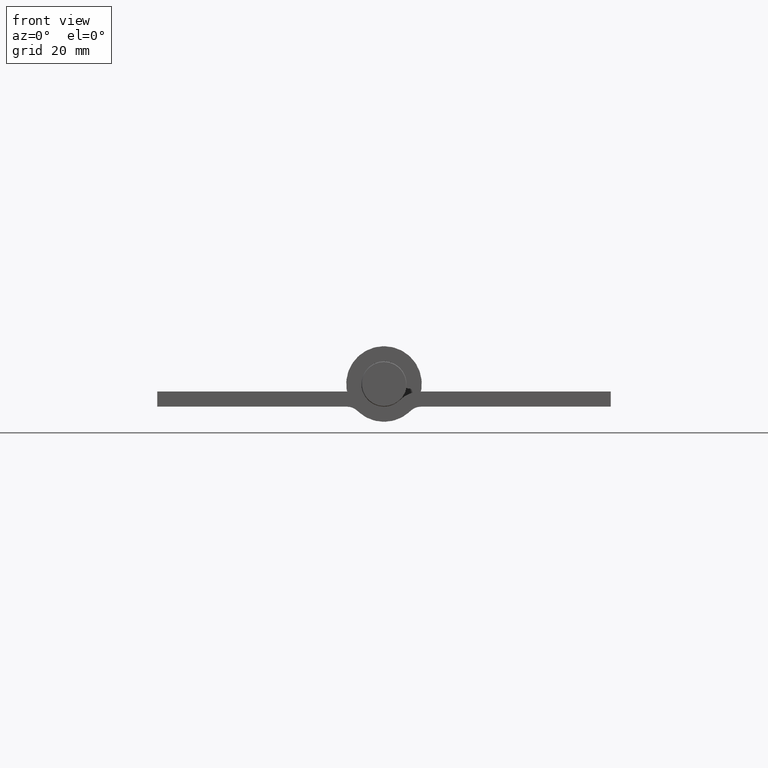
[diagram: clean part render]
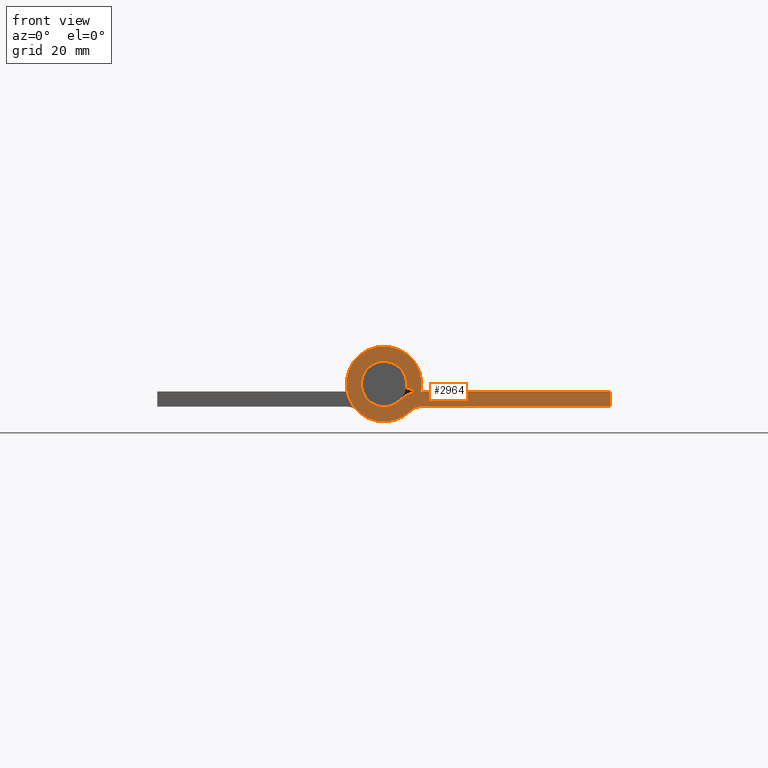
[diagram: same view with one face highlighted and labeled with its STEP entity id]
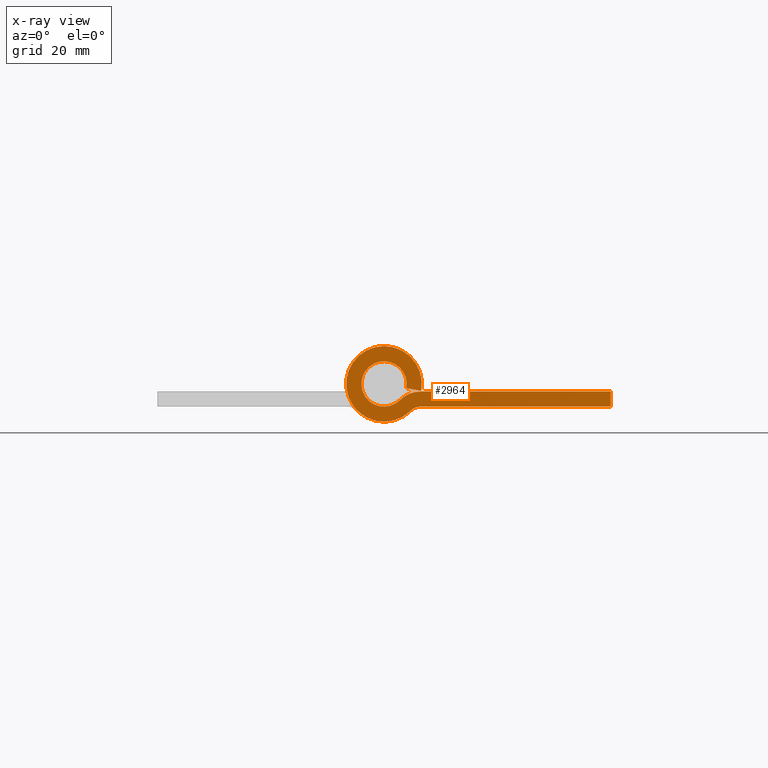
[diagram: x-ray of the same camera — body ghosted, the highlighted face saturated]
A machine part, front view. The second image highlights one B-rep face of the part: STEP entity #2964.
The next image is the same camera in x-ray: the body ghosted, the highlighted face saturated — about 0% of this face is hidden behind the body in this view.
In plain terms, the highlighted planar face has unit normal (0, 1, 0).
Its self-contained STEP definition (entity closure, byte-faithful):
#171 = DIRECTION ( 'NONE',  ( 0.000000000000000000, 0.000000000000000000, 1.000000000000000000 ) ) ;
#546 = ORIENTED_EDGE ( 'NONE', *, *, #8050, .T. ) ;
#638 = DIRECTION ( 'NONE',  ( -0.9829262434180908725, -0.000000000000000000, -0.1840000000000000524 ) ) ;
#772 = CARTESIAN_POINT ( 'NONE',  ( -37.50000000000000000, 45.00000000000000000, -3.750000000000000000 ) ) ;
#1203 = EDGE_CURVE ( 'NONE', #6979, #12379, #10691, .T. ) ;
#1449 = VERTEX_POINT ( 'NONE', #2702 ) ;
#1503 = EDGE_CURVE ( 'NONE', #1449, #6710, #9335, .T. ) ;
#1650 = ORIENTED_EDGE ( 'NONE', *, *, #1203, .T. ) ;
#1971 = EDGE_CURVE ( 'NONE', #6710, #5144, #5874, .T. ) ;
#2392 = LINE ( 'NONE', #12378, #2853 ) ;
#2702 = CARTESIAN_POINT ( 'NONE',  ( -37.50000000000000000, 45.00000000000000000, -1.249999999999999778 ) ) ;
#2731 = VECTOR ( 'NONE', #4586, 1000.000000000000000 ) ;
#2853 = VECTOR ( 'NONE', #7579, 1000.000000000000000 ) ;
#2942 = CARTESIAN_POINT ( 'NONE',  ( -37.50000000000000000, 45.00000000000000000, -3.750000000000000000 ) ) ;
#2953 = AXIS2_PLACEMENT_3D ( 'NONE', #10885, #11723, #10928 ) ;
#2964 = ADVANCED_FACE ( 'NONE', ( #3766 ), #9525, .F. ) ;
#3444 = CARTESIAN_POINT ( 'NONE',  ( -6.143289021363067981, 45.00000000000000000, -1.149999999999999467 ) ) ;
#3766 = FACE_OUTER_BOUND ( 'NONE', #8815, .T. ) ;
#4005 = EDGE_CURVE ( 'NONE', #7212, #6979, #12148, .T. ) ;
#4050 = EDGE_CURVE ( 'NONE', #12069, #1449, #2392, .T. ) ;
#4158 = CIRCLE ( 'NONE', #6684, 2.500000000000000444 ) ;
#4586 = DIRECTION ( 'NONE',  ( 1.000000000000000000, 0.000000000000000000, 1.382193584503309592E-17 ) ) ;
#4763 = EDGE_CURVE ( 'NONE', #5144, #7212, #9765, .T. ) ;
#5054 = VERTEX_POINT ( 'NONE', #6358 ) ;
#5100 = AXIS2_PLACEMENT_3D ( 'NONE', #7930, #7973, #171 ) ;
#5144 = VERTEX_POINT ( 'NONE', #5702 ) ;
#5215 = EDGE_CURVE ( 'NONE', #5054, #12069, #6176, .T. ) ;
#5503 = CARTESIAN_POINT ( 'NONE',  ( 0.000000000000000000, 45.00000000000000000, 0.000000000000000000 ) ) ;
#5702 = CARTESIAN_POINT ( 'NONE',  ( -2.624453295839119349, 45.00000000000000000, -2.678571428571426161 ) ) ;
#5718 = DIRECTION ( 'NONE',  ( 0.000000000000000000, -0.000000000000000000, -1.000000000000000000 ) ) ;
#5874 = CIRCLE ( 'NONE', #2953, 5.000000000000000888 ) ;
#6176 = LINE ( 'NONE', #2942, #6482 ) ;
#6358 = CARTESIAN_POINT ( 'NONE',  ( -6.123724356957943371, 45.00000000000000000, -3.750000000000000000 ) ) ;
#6455 = DIRECTION ( 'NONE',  ( 0.000000000000000000, 0.000000000000000000, 1.000000000000000000 ) ) ;
#6482 = VECTOR ( 'NONE', #9555, 1000.000000000000000 ) ;
#6650 = DIRECTION ( 'NONE',  ( 0.000000000000000000, -1.000000000000000000, 0.000000000000000000 ) ) ;
#6684 = AXIS2_PLACEMENT_3D ( 'NONE', #11851, #10892, #7028 ) ;
#6710 = VERTEX_POINT ( 'NONE', #10718 ) ;
#6965 = ORIENTED_EDGE ( 'NONE', *, *, #5215, .T. ) ;
#6979 = VERTEX_POINT ( 'NONE', #7589 ) ;
#7028 = DIRECTION ( 'NONE',  ( 0.000000000000000000, 0.000000000000000000, -1.000000000000000000 ) ) ;
#7212 = VERTEX_POINT ( 'NONE', #10915 ) ;
#7579 = DIRECTION ( 'NONE',  ( -0.000000000000000000, -0.000000000000000000, 1.000000000000000000 ) ) ;
#7589 = CARTESIAN_POINT ( 'NONE',  ( -6.143289021363066205, 45.00000000000000000, -1.150000000000003464 ) ) ;
#7598 = CARTESIAN_POINT ( 'NONE',  ( -37.50000000000000000, 45.00000000000000000, -1.249999999999999778 ) ) ;
#7930 = CARTESIAN_POINT ( 'NONE',  ( 0.000000000000000000, 45.00000000000000000, 0.000000000000000000 ) ) ;
#7956 = ORIENTED_EDGE ( 'NONE', *, *, #4050, .T. ) ;
#7973 = DIRECTION ( 'NONE',  ( 0.000000000000000000, 1.000000000000000000, 0.000000000000000000 ) ) ;
#8050 = EDGE_CURVE ( 'NONE', #12379, #5054, #4158, .T. ) ;
#8056 = ORIENTED_EDGE ( 'NONE', *, *, #4763, .T. ) ;
#8668 = AXIS2_PLACEMENT_3D ( 'NONE', #10378, #6650, #5718 ) ;
#8758 = AXIS2_PLACEMENT_3D ( 'NONE', #5503, #10290, #6455 ) ;
#8815 = EDGE_LOOP ( 'NONE', ( #7956, #10621, #10206, #8056, #10100, #1650, #546, #6965 ) ) ;
#9335 = LINE ( 'NONE', #7598, #2731 ) ;
#9525 = PLANE ( 'NONE',  #8668 ) ;
#9555 = DIRECTION ( 'NONE',  ( -1.000000000000000000, -0.000000000000000000, -0.000000000000000000 ) ) ;
#9589 = VECTOR ( 'NONE', #638, 1000.000000000000000 ) ;
#9765 = CIRCLE ( 'NONE', #8758, 3.749999999999998224 ) ;
#10100 = ORIENTED_EDGE ( 'NONE', *, *, #4005, .T. ) ;
#10206 = ORIENTED_EDGE ( 'NONE', *, *, #1971, .T. ) ;
#10290 = DIRECTION ( 'NONE',  ( -0.000000000000000000, -1.000000000000000000, -0.000000000000000000 ) ) ;
#10378 = CARTESIAN_POINT ( 'NONE',  ( -6.123724356957943371, 45.00000000000000000, -6.250000000000000000 ) ) ;
#10621 = ORIENTED_EDGE ( 'NONE', *, *, #1503, .T. ) ;
#10691 = CIRCLE ( 'NONE', #5100, 6.249999999999999112 ) ;
#10718 = CARTESIAN_POINT ( 'NONE',  ( -6.123724356957945147, 45.00000000000000000, -1.249999999999999334 ) ) ;
#10885 = CARTESIAN_POINT ( 'NONE',  ( -6.123724356957943371, 45.00000000000000000, -6.250000000000000000 ) ) ;
#10892 = DIRECTION ( 'NONE',  ( -0.000000000000000000, -1.000000000000000000, 0.000000000000000000 ) ) ;
#10915 = CARTESIAN_POINT ( 'NONE',  ( -3.685973412817839190, 45.00000000000000000, -0.6899999999999990585 ) ) ;
#10928 = DIRECTION ( 'NONE',  ( 0.000000000000000000, 0.000000000000000000, -1.000000000000000000 ) ) ;
#11027 = CARTESIAN_POINT ( 'NONE',  ( -4.374088826398531360, 45.00000000000000000, -4.464285714285714413 ) ) ;
#11723 = DIRECTION ( 'NONE',  ( 0.000000000000000000, 1.000000000000000000, -0.000000000000000000 ) ) ;
#11851 = CARTESIAN_POINT ( 'NONE',  ( -6.123724356957943371, 45.00000000000000000, -6.250000000000000000 ) ) ;
#12069 = VERTEX_POINT ( 'NONE', #772 ) ;
#12148 = LINE ( 'NONE', #3444, #9589 ) ;
#12378 = CARTESIAN_POINT ( 'NONE',  ( -37.50000000000000000, 45.00000000000000000, -1.249999999999999778 ) ) ;
#12379 = VERTEX_POINT ( 'NONE', #11027 ) ;